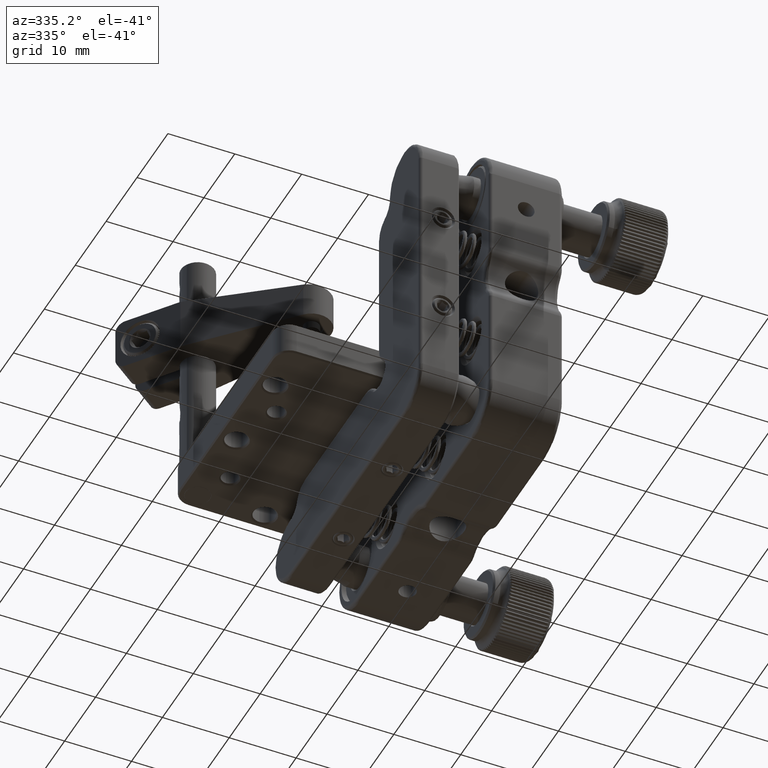
[diagram: clean part render]
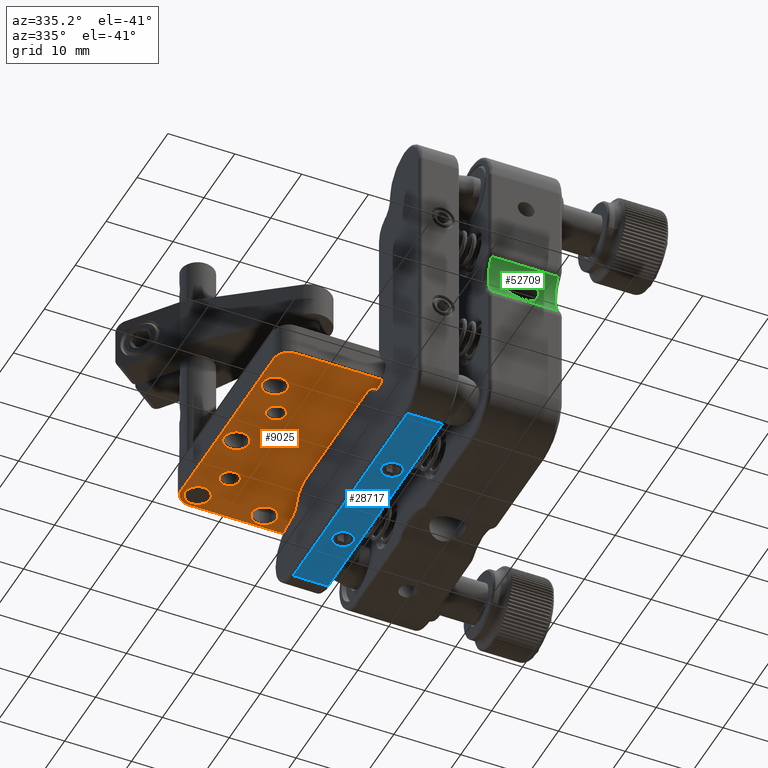
[diagram: same view with three faces highlighted in distinct colors, each labeled with its STEP entity id]
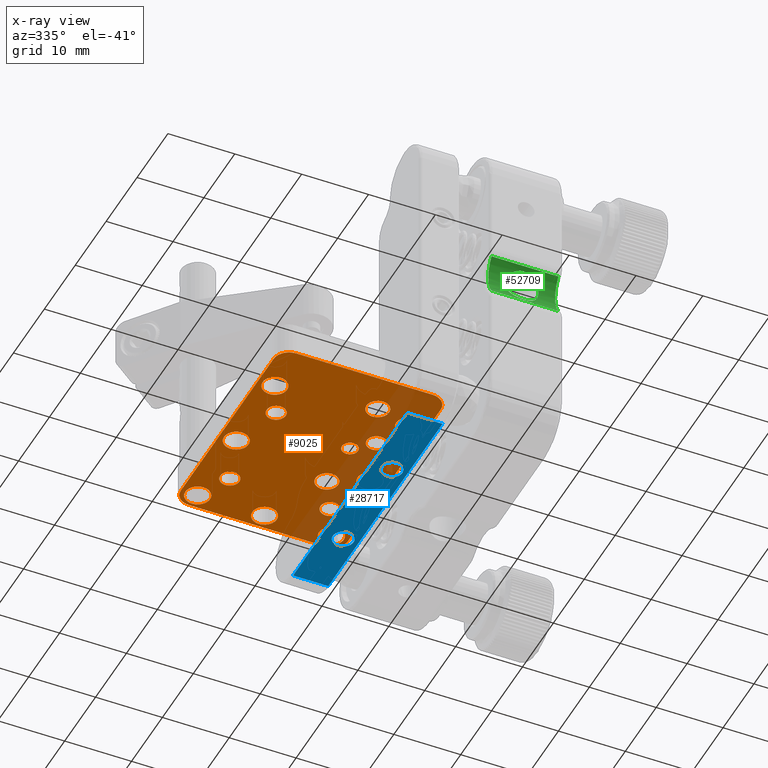
[diagram: x-ray of the same camera — body ghosted, the three highlighted faces saturated]
A machine part, auxiliary view with three faces highlighted in distinct colors.
The next image is the same camera in x-ray (body ghosted, the three faces saturated) — at least one of them is partly hidden behind the body in this view.
Their STEP definitions:

[orange] entity #9025 — the highlighted planar face has unit normal (0, 0, 1).
#143 = ORIENTED_EDGE ( 'NONE', *, *, #20534, .F. ) ;
#239 = CARTESIAN_POINT ( 'NONE',  ( -29.69999999999999929, 8.000000000000000000, -10.00000000000000000 ) ) ;
#344 = VERTEX_POINT ( 'NONE', #48723 ) ;
#524 = VERTEX_POINT ( 'NONE', #55263 ) ;
#574 = EDGE_LOOP ( 'NONE', ( #29004, #25036 ) ) ;
#736 = CARTESIAN_POINT ( 'NONE',  ( -27.20000000070828960, 21.14999999899999850, -10.00000000100000008 ) ) ;
#790 = CARTESIAN_POINT ( 'NONE',  ( -30.89999999848224022, 24.85000000000000497, -10.00000000000000000 ) ) ;
#1162 = CIRCLE ( 'NONE', #33505, 1.449999997166660393 ) ;
#1765 = CARTESIAN_POINT ( 'NONE',  ( -12.50000000002035350, -5.199999999999998401, -10.00000000000000000 ) ) ;
#1784 = VERTEX_POINT ( 'NONE', #33785 ) ;
#1970 =( BOUNDED_CURVE ( )  B_SPLINE_CURVE ( 3, ( #47726, #53080, #6948, #20634 ),
 .UNSPECIFIED., .F., .T. ) 
 B_SPLINE_CURVE_WITH_KNOTS ( ( 4, 4 ),
 ( 1.299397530674239163E-13, 0.003750978498008947747 ),
 .UNSPECIFIED. ) 
 CURVE ( )  GEOMETRIC_REPRESENTATION_ITEM ( )  RATIONAL_B_SPLINE_CURVE ( ( 1.000000000000000000, 0.3333333334700690487, 0.3333333334700690487, 1.000000000000000000 ) ) 
 REPRESENTATION_ITEM ( '' )  );
#2030 = CARTESIAN_POINT ( 'NONE',  ( -9.700000000555146329, 16.55000000141666661, -9.999999998583330552 ) ) ;
#2486 =( BOUNDED_CURVE ( )  B_SPLINE_CURVE ( 3, ( #24233, #52727, #42414, #30079 ),
 .UNSPECIFIED., .F., .T. ) 
 B_SPLINE_CURVE_WITH_KNOTS ( ( 4, 4 ),
 ( 2.769295101801211656E-13, 0.004532432351619745774 ),
 .UNSPECIFIED. ) 
 CURVE ( )  GEOMETRIC_REPRESENTATION_ITEM ( )  RATIONAL_B_SPLINE_CURVE ( ( 1.000000000000000000, 0.3333333334700690487, 0.3333333334700690487, 1.000000000000000000 ) ) 
 REPRESENTATION_ITEM ( '' )  );
#2755 = CARTESIAN_POINT ( 'NONE',  ( -10.89999999924111762, 21.15000000151776405, -10.00000000000000000 ) ) ;
#3105 = EDGE_CURVE ( 'NONE', #5483, #28156, #22715, .T. ) ;
#3207 = AXIS2_PLACEMENT_3D ( 'NONE', #57515, #25360, #43516 ) ;
#3693 = CARTESIAN_POINT ( 'NONE',  ( -12.50000000002035350, 11.30000000000000071, -10.00000000000000000 ) ) ;
#4019 = FACE_BOUND ( 'NONE', #15308, .T. ) ;
#4020 = EDGE_CURVE ( 'NONE', #14079, #12148, #57036, .T. ) ;
#4216 = CARTESIAN_POINT ( 'NONE',  ( -12.50000000002035350, 11.30000000000000071, -10.00000000000000000 ) ) ;
#4271 = AXIS2_PLACEMENT_3D ( 'NONE', #39753, #8174, #57928 ) ;
#4318 = FACE_BOUND ( 'NONE', #6830, .T. ) ;
#4434 = CARTESIAN_POINT ( 'NONE',  ( -12.49999999999999645, -3.499999999999999556, -10.00000000000000000 ) ) ;
#4612 = EDGE_CURVE ( 'NONE', #25641, #524, #33289, .T. ) ;
#4720 = VERTEX_POINT ( 'NONE', #18344 ) ;
#4871 = VERTEX_POINT ( 'NONE', #7873 ) ;
#4969 = CARTESIAN_POINT ( 'NONE',  ( -12.50000000058112448, -1.799999999999999600, -10.00000000000000000 ) ) ;
#5388 = EDGE_CURVE ( 'NONE', #44323, #4871, #55076, .T. ) ;
#5483 = VERTEX_POINT ( 'NONE', #58731 ) ;
#5550 = AXIS2_PLACEMENT_3D ( 'NONE', #26531, #36646, #31581 ) ;
#5856 = CARTESIAN_POINT ( 'NONE',  ( -27.20000000070828960, 21.14999999899999850, -10.00000000100000008 ) ) ;
#6305 = ORIENTED_EDGE ( 'NONE', *, *, #21647, .F. ) ;
#6328 =( BOUNDED_CURVE ( )  B_SPLINE_CURVE ( 3, ( #41553, #37063, #17806, #14738 ),
 .UNSPECIFIED., .F., .F. ) 
 B_SPLINE_CURVE_WITH_KNOTS ( ( 4, 4 ),
 ( 5.511412298146780091E-15, 0.004532432351703708992 ),
 .UNSPECIFIED. ) 
 CURVE ( )  GEOMETRIC_REPRESENTATION_ITEM ( )  RATIONAL_B_SPLINE_CURVE ( ( 1.000000000000000000, 0.3333333334700690487, 0.3333333334700690487, 1.000000000000000000 ) ) 
 REPRESENTATION_ITEM ( '' )  );
#6411 = CARTESIAN_POINT ( 'NONE',  ( -27.59999999940519189, 16.55000000118959846, -10.00000000000000000 ) ) ;
#6778 = CARTESIAN_POINT ( 'NONE',  ( -17.19999999999999929, -9.299999999999998934, -10.00000000000000000 ) ) ;
#6830 = EDGE_LOOP ( 'NONE', ( #24218, #28148 ) ) ;
#6930 = CARTESIAN_POINT ( 'NONE',  ( -17.20000000005537188, 24.85000000100000150, -10.00000000100000008 ) ) ;
#6948 = CARTESIAN_POINT ( 'NONE',  ( -14.89999999901550254, 6.700000000000000178, -10.00000000000000000 ) ) ;
#7150 = DIRECTION ( 'NONE',  ( 1.000000000000000000, 0.000000000000000000, 0.000000000000000000 ) ) ;
#7155 = CIRCLE ( 'NONE', #4271, 1.450000000399999323 ) ;
#7793 = DIRECTION ( 'NONE',  ( 1.000000000000000000, 0.000000000000000000, 0.000000000000000000 ) ) ;
#7873 = CARTESIAN_POINT ( 'NONE',  ( -29.69999999999999574, 23.00000000044239457, -10.00000000000000000 ) ) ;
#7929 = FACE_BOUND ( 'NONE', #52271, .T. ) ;
#7945 = EDGE_LOOP ( 'NONE', ( #54881, #56384 ) ) ;
#8078 = DIRECTION ( 'NONE',  ( -0.000000000000000000, -0.000000000000000000, -1.000000000000000000 ) ) ;
#8163 = CARTESIAN_POINT ( 'NONE',  ( -27.20000000005537188, 24.85000000100000150, -10.00000000100000008 ) ) ;
#8174 = DIRECTION ( 'NONE',  ( 3.701697761052392156E-17, 3.701697760293164687E-17, -1.000000000000000000 ) ) ;
#8204 = VERTEX_POINT ( 'NONE', #51879 ) ;
#8238 = CARTESIAN_POINT ( 'NONE',  ( -10.89999999924111762, -3.849999998482234176, -10.00000000000000000 ) ) ;
#8511 = DIRECTION ( 'NONE',  ( 0.000000000000000000, 0.000000000000000000, 1.000000000000000000 ) ) ;
#8603 = CARTESIAN_POINT ( 'NONE',  ( -7.000000000000002665, 25.29999999999999716, -10.00000000000000000 ) ) ;
#8698 = CARTESIAN_POINT ( 'NONE',  ( -15.89999999930264174, 14.69999999860529627, -10.00000000000000000 ) ) ;
#8772 = DIRECTION ( 'NONE',  ( 0.000000000000000000, -1.000000000000000000, 0.000000000000000000 ) ) ;
#8818 = CARTESIAN_POINT ( 'NONE',  ( -12.50000000002035350, -5.199999999999998401, -10.00000000000000000 ) ) ;
#9025 = ADVANCED_FACE ( 'NONE', ( #47856, #40386, #13271, #4318, #58262, #4019, #17445, #21330, #13562, #21618, #39512, #7929, #57687, #26369, #17730 ), #22502, .F. ) ;
#9648 = ORIENTED_EDGE ( 'NONE', *, *, #49765, .F. ) ;
#9860 = VERTEX_POINT ( 'NONE', #13854 ) ;
#10222 = VERTEX_POINT ( 'NONE', #23250 ) ;
#11216 =( BOUNDED_CURVE ( )  B_SPLINE_CURVE ( 3, ( #22512, #53506, #45139, #54688 ),
 .UNSPECIFIED., .F., .T. ) 
 B_SPLINE_CURVE_WITH_KNOTS ( ( 4, 4 ),
 ( 2.205571338659796204E-13, 0.005782758517643168603 ),
 .UNSPECIFIED. ) 
 CURVE ( )  GEOMETRIC_REPRESENTATION_ITEM ( )  RATIONAL_B_SPLINE_CURVE ( ( 1.000000000000000000, 0.3333333334700690487, 0.3333333334700690487, 1.000000000000000000 ) ) 
 REPRESENTATION_ITEM ( '' )  );
#11317 = EDGE_CURVE ( 'NONE', #47930, #19111, #29111, .T. ) ;
#11468 = CIRCLE ( 'NONE', #28524, 1.850000002000001809 ) ;
#11498 = CARTESIAN_POINT ( 'NONE',  ( -7.200000000000000178, -1.999999999999993117, -9.999999999700001752 ) ) ;
#11598 = CARTESIAN_POINT ( 'NONE',  ( -24.70000000055514633, 16.55000000141667371, -9.999999998583328775 ) ) ;
#11904 = DIRECTION ( 'NONE',  ( -0.000000000000000000, 1.000000000000000000, -0.000000000000000000 ) ) ;
#11939 = EDGE_CURVE ( 'NONE', #35820, #344, #6328, .T. ) ;
#12064 = DIRECTION ( 'NONE',  ( 2.804316485645718615E-17, 2.804316485070571838E-17, -1.000000000000000000 ) ) ;
#12148 = VERTEX_POINT ( 'NONE', #35521 ) ;
#12738 = EDGE_CURVE ( 'NONE', #21318, #55273, #58344, .T. ) ;
#13271 = FACE_BOUND ( 'NONE', #57033, .T. ) ;
#13338 = CARTESIAN_POINT ( 'NONE',  ( -4.699999999999999289, 23.00000000023587177, -10.00000000000000000 ) ) ;
#13562 = FACE_BOUND ( 'NONE', #50466, .T. ) ;
#13605 = CARTESIAN_POINT ( 'NONE',  ( -4.699999999999999289, -7.000000000000004441, -10.00000000000000000 ) ) ;
#13731 = DIRECTION ( 'NONE',  ( 2.804316485645746964E-17, 2.804316485070573687E-17, -1.000000000000000000 ) ) ;
#13854 = CARTESIAN_POINT ( 'NONE',  ( -7.200000000055370108, 12.34999999898333378, -9.999999998983334137 ) ) ;
#13991 = DIRECTION ( 'NONE',  ( 2.804316485645719231E-17, 2.804316485070573687E-17, -1.000000000000000000 ) ) ;
#14079 = VERTEX_POINT ( 'NONE', #50581 ) ;
#14467 = ORIENTED_EDGE ( 'NONE', *, *, #49206, .F. ) ;
#14738 = CARTESIAN_POINT ( 'NONE',  ( -24.70000000004339924, 4.450000000200000194, -10.00000000020000002 ) ) ;
#15051 = CARTESIAN_POINT ( 'NONE',  ( -27.59999999881039301, 19.44999999999999929, -10.00000000000000000 ) ) ;
#15155 = AXIS2_PLACEMENT_3D ( 'NONE', #49768, #53662, #36636 ) ;
#15182 = AXIS2_PLACEMENT_3D ( 'NONE', #19663, #24735, #7150 ) ;
#15216 = CARTESIAN_POINT ( 'NONE',  ( -29.69999999999999929, -6.999999999557608099, -10.00000000000000000 ) ) ;
#15308 = EDGE_LOOP ( 'NONE', ( #35015, #51749 ) ) ;
#15444 = EDGE_LOOP ( 'NONE', ( #51629, #9648 ) ) ;
#16473 = CARTESIAN_POINT ( 'NONE',  ( -7.200000000055370108, 24.85000000100000150, -10.00000000100000008 ) ) ;
#16755 = VECTOR ( 'NONE', #58090, 1000.000000000000000 ) ;
#16940 = EDGE_CURVE ( 'NONE', #524, #25641, #46185, .T. ) ;
#17175 = EDGE_CURVE ( 'NONE', #17893, #4720, #22407, .T. ) ;
#17186 = CARTESIAN_POINT ( 'NONE',  ( -9.700000000555146329, 1.549999999799998696, -10.00000000020000002 ) ) ;
#17445 = FACE_BOUND ( 'NONE', #47589, .T. ) ;
#17499 = ORIENTED_EDGE ( 'NONE', *, *, #20082, .F. ) ;
#17502 = CIRCLE ( 'NONE', #3207, 2.300000000000003375 ) ;
#17638 = EDGE_CURVE ( 'NONE', #21028, #31569, #29132, .T. ) ;
#17730 = FACE_BOUND ( 'NONE', #29349, .T. ) ;
#17761 = EDGE_CURVE ( 'NONE', #23485, #44323, #25911, .T. ) ;
#17806 = CARTESIAN_POINT ( 'NONE',  ( -27.59999999881040367, 4.450000000000000178, -10.00000000000000178 ) ) ;
#17893 = VERTEX_POINT ( 'NONE', #18140 ) ;
#17905 = DIRECTION ( 'NONE',  ( 1.000000000000000000, 0.000000000000000000, 0.000000000000000000 ) ) ;
#17939 = CARTESIAN_POINT ( 'NONE',  ( -27.20000000070829316, -3.849999999850004517, -9.999999999850002652 ) ) ;
#18138 = DIRECTION ( 'NONE',  ( 0.000000000000000000, -1.000000000000000000, 0.000000000000000000 ) ) ;
#18140 = CARTESIAN_POINT ( 'NONE',  ( -27.20000000005537188, 12.34999999898333378, -9.999999998983334137 ) ) ;
#18149 = CARTESIAN_POINT ( 'NONE',  ( -24.70000000055514633, 1.549999999799999584, -10.00000000020000002 ) ) ;
#18344 = CARTESIAN_POINT ( 'NONE',  ( -27.20000000070828960, 8.650000001016667994, -9.999999998983334137 ) ) ;
#18520 = CIRCLE ( 'NONE', #48030, 2.299999999999989608 ) ;
#18669 =( BOUNDED_CURVE ( )  B_SPLINE_CURVE ( 3, ( #43580, #2755, #39111, #16473 ),
 .UNSPECIFIED., .F., .F. ) 
 B_SPLINE_CURVE_WITH_KNOTS ( ( 4, 4 ),
 ( 1.180118893524667894E-13, 0.005782758517747905135 ),
 .UNSPECIFIED. ) 
 CURVE ( )  GEOMETRIC_REPRESENTATION_ITEM ( )  RATIONAL_B_SPLINE_CURVE ( ( 1.000000000000000000, 0.3333333334700690487, 0.3333333334700690487, 1.000000000000000000 ) ) 
 REPRESENTATION_ITEM ( '' )  );
#18686 = VECTOR ( 'NONE', #35028, 1000.000000000000000 ) ;
#19111 = VERTEX_POINT ( 'NONE', #8163 ) ;
#19339 = CARTESIAN_POINT ( 'NONE',  ( -27.20000000000000284, -2.000000000000003553, -9.999999999700001752 ) ) ;
#19383 = ORIENTED_EDGE ( 'NONE', *, *, #37326, .F. ) ;
#19663 = CARTESIAN_POINT ( 'NONE',  ( -12.50000000000000000, 5.500000000000003553, -10.00000000193333349 ) ) ;
#19751 = DIRECTION ( 'NONE',  ( 1.000000000000000000, 0.000000000000000000, 0.000000000000000000 ) ) ;
#20036 = CARTESIAN_POINT ( 'NONE',  ( -10.89999999924111407, 8.650000001517765824, -10.00000000000000000 ) ) ;
#20082 = EDGE_CURVE ( 'NONE', #4871, #27225, #50295, .T. ) ;
#20435 =( BOUNDED_CURVE ( )  B_SPLINE_CURVE ( 3, ( #17186, #22237, #27290, #41011 ),
 .UNSPECIFIED., .F., .T. ) 
 B_SPLINE_CURVE_WITH_KNOTS ( ( 4, 4 ),
 ( 5.513158802045404362E-15, 0.004532432351703706390 ),
 .UNSPECIFIED. ) 
 CURVE ( )  GEOMETRIC_REPRESENTATION_ITEM ( )  RATIONAL_B_SPLINE_CURVE ( ( 1.000000000000000000, 0.3333333334700690487, 0.3333333334700690487, 1.000000000000000000 ) ) 
 REPRESENTATION_ITEM ( '' )  );
#20517 = AXIS2_PLACEMENT_3D ( 'NONE', #11498, #38877, #20995 ) ;
#20534 = EDGE_CURVE ( 'NONE', #8204, #36332, #20435, .T. ) ;
#20634 = CARTESIAN_POINT ( 'NONE',  ( -12.50000000003591438, 6.700000000966666924, -10.00000000096666852 ) ) ;
#20824 = ORIENTED_EDGE ( 'NONE', *, *, #21795, .F. ) ;
#20995 = DIRECTION ( 'NONE',  ( 1.000000000000000000, 0.000000000000000000, 0.000000000000000000 ) ) ;
#21028 = VERTEX_POINT ( 'NONE', #29426 ) ;
#21055 = CARTESIAN_POINT ( 'NONE',  ( -7.200000000708288717, -3.849999999850004517, -9.999999999850002652 ) ) ;
#21314 = ORIENTED_EDGE ( 'NONE', *, *, #16940, .F. ) ;
#21318 = VERTEX_POINT ( 'NONE', #13605 ) ;
#21330 = FACE_BOUND ( 'NONE', #23764, .T. ) ;
#21489 = ORIENTED_EDGE ( 'NONE', *, *, #17638, .F. ) ;
#21618 = FACE_BOUND ( 'NONE', #41336, .T. ) ;
#21647 = EDGE_CURVE ( 'NONE', #58689, #28641, #1162, .T. ) ;
#21795 = EDGE_CURVE ( 'NONE', #27225, #23198, #40163, .T. ) ;
#21998 = EDGE_CURVE ( 'NONE', #36332, #8204, #37987, .T. ) ;
#22204 = DIRECTION ( 'NONE',  ( 0.000000000000000000, -1.000000000000000000, 0.000000000000000000 ) ) ;
#22237 = CARTESIAN_POINT ( 'NONE',  ( -12.59999999940519899, 1.550000001189600463, -10.00000000000000178 ) ) ;
#22322 = DIRECTION ( 'NONE',  ( -0.000000000000000000, -0.000000000000000000, -1.000000000000000000 ) ) ;
#22407 = CIRCLE ( 'NONE', #41468, 1.849999997966669030 ) ;
#22418 = EDGE_CURVE ( 'NONE', #31569, #21028, #36405, .T. ) ;
#22469 = CARTESIAN_POINT ( 'NONE',  ( -27.39999999999998792, -7.000000000000000888, -10.00000000000000000 ) ) ;
#22502 = PLANE ( 'NONE',  #45704 ) ;
#22512 = CARTESIAN_POINT ( 'NONE',  ( -27.20000000070828960, 8.650000001016667994, -9.999999998983334137 ) ) ;
#22650 = CARTESIAN_POINT ( 'NONE',  ( -27.19999999999998153, 23.00000000000000000, -10.00000000200000194 ) ) ;
#22715 = CIRCLE ( 'NONE', #39844, 1.700000000000000178 ) ;
#22881 = EDGE_CURVE ( 'NONE', #48874, #28732, #57093, .T. ) ;
#23042 = DIRECTION ( 'NONE',  ( 2.804316485645756825E-17, 2.804316485070578618E-17, -1.000000000000000000 ) ) ;
#23096 = ORIENTED_EDGE ( 'NONE', *, *, #5388, .F. ) ;
#23109 = CARTESIAN_POINT ( 'NONE',  ( -15.89999999930264707, -1.800000001394702842, -10.00000000000000000 ) ) ;
#23198 = VERTEX_POINT ( 'NONE', #55728 ) ;
#23250 = CARTESIAN_POINT ( 'NONE',  ( -27.20000000070829316, -3.849999999850004517, -9.999999999850002652 ) ) ;
#23485 = VERTEX_POINT ( 'NONE', #8603 ) ;
#23764 = EDGE_LOOP ( 'NONE', ( #32811, #54617 ) ) ;
#24218 = ORIENTED_EDGE ( 'NONE', *, *, #33467, .F. ) ;
#24233 = CARTESIAN_POINT ( 'NONE',  ( -9.700000000555146329, 16.55000000141666661, -9.999999998583330552 ) ) ;
#24735 = DIRECTION ( 'NONE',  ( 4.627122201315476328E-17, 4.627122200366438449E-17, -1.000000000000000000 ) ) ;
#25036 = ORIENTED_EDGE ( 'NONE', *, *, #25181, .F. ) ;
#25181 = EDGE_CURVE ( 'NONE', #344, #35820, #7155, .T. ) ;
#25207 = CARTESIAN_POINT ( 'NONE',  ( -9.699999999999997513, 18.00000000000000355, -9.999999997166661103 ) ) ;
#25360 = DIRECTION ( 'NONE',  ( 0.000000000000000000, 0.000000000000000000, 1.000000000000000000 ) ) ;
#25390 = CARTESIAN_POINT ( 'NONE',  ( -10.89999999848223133, 12.34999999999999964, -10.00000000000000000 ) ) ;
#25490 = DIRECTION ( 'NONE',  ( 3.701697761052383528E-17, 3.701697760293160373E-17, -1.000000000000000000 ) ) ;
#25641 = VERTEX_POINT ( 'NONE', #45616 ) ;
#25671 = CARTESIAN_POINT ( 'NONE',  ( -7.200000000708288717, 8.650000001016667994, -9.999999998983334137 ) ) ;
#25911 = LINE ( 'NONE', #26780, #16755 ) ;
#26284 = CARTESIAN_POINT ( 'NONE',  ( -30.89999999848223666, -0.1499999999999973854, -10.00000000000000000 ) ) ;
#26369 = FACE_BOUND ( 'NONE', #574, .T. ) ;
#26531 = CARTESIAN_POINT ( 'NONE',  ( -27.40000000000000213, 23.00000000000000000, -10.00000000000000000 ) ) ;
#26780 = CARTESIAN_POINT ( 'NONE',  ( -17.19999999999999929, 25.30000000000000071, -10.00000000000000000 ) ) ;
#27225 = VERTEX_POINT ( 'NONE', #15216 ) ;
#27290 = CARTESIAN_POINT ( 'NONE',  ( -12.59999999881039656, 4.449999999999998401, -10.00000000000000178 ) ) ;
#27555 =( BOUNDED_CURVE ( )  B_SPLINE_CURVE ( 3, ( #4216, #49498, #8698, #49803 ),
 .UNSPECIFIED., .F., .F. ) 
 B_SPLINE_CURVE_WITH_KNOTS ( ( 4, 4 ),
 ( 2.006415758497183476E-14, 0.005313886205509007685 ),
 .UNSPECIFIED. ) 
 CURVE ( )  GEOMETRIC_REPRESENTATION_ITEM ( )  RATIONAL_B_SPLINE_CURVE ( ( 1.000000000000000000, 0.3333333334700690487, 0.3333333334700690487, 1.000000000000000000 ) ) 
 REPRESENTATION_ITEM ( '' )  );
#27960 = AXIS2_PLACEMENT_3D ( 'NONE', #19339, #45851, #36897 ) ;
#28148 = ORIENTED_EDGE ( 'NONE', *, *, #4020, .F. ) ;
#28156 = VERTEX_POINT ( 'NONE', #3693 ) ;
#28209 = CARTESIAN_POINT ( 'NONE',  ( -9.700000000043401016, 19.44999999858332984, -9.999999998583328775 ) ) ;
#28445 = DIRECTION ( 'NONE',  ( 0.000000000000000000, 0.000000000000000000, 1.000000000000000000 ) ) ;
#28453 = EDGE_CURVE ( 'NONE', #28732, #48874, #18669, .T. ) ;
#28524 = AXIS2_PLACEMENT_3D ( 'NONE', #22650, #13991, #32153 ) ;
#28641 = VERTEX_POINT ( 'NONE', #2030 ) ;
#28732 = VERTEX_POINT ( 'NONE', #48771 ) ;
#28983 = CIRCLE ( 'NONE', #41362, 1.850000002000001809 ) ;
#29004 = ORIENTED_EDGE ( 'NONE', *, *, #11939, .F. ) ;
#29111 =( BOUNDED_CURVE ( )  B_SPLINE_CURVE ( 3, ( #5856, #56220, #790, #41914 ),
 .UNSPECIFIED., .F., .T. ) 
 B_SPLINE_CURVE_WITH_KNOTS ( ( 4, 4 ),
 ( 1.180127444014865594E-13, 0.005782758517747907737 ),
 .UNSPECIFIED. ) 
 CURVE ( )  GEOMETRIC_REPRESENTATION_ITEM ( )  RATIONAL_B_SPLINE_CURVE ( ( 1.000000000000000000, 0.3333333334700690487, 0.3333333334700690487, 1.000000000000000000 ) ) 
 REPRESENTATION_ITEM ( '' )  );
#29132 = CIRCLE ( 'NONE', #44344, 1.449999997166662169 ) ;
#29349 = EDGE_LOOP ( 'NONE', ( #55929, #21489 ) ) ;
#29363 = CARTESIAN_POINT ( 'NONE',  ( -27.40000000047173856, 25.29999999999999716, -10.00000000000000000 ) ) ;
#29426 = CARTESIAN_POINT ( 'NONE',  ( -24.70000000004339924, 19.44999999858332984, -9.999999998583328775 ) ) ;
#29482 = AXIS2_PLACEMENT_3D ( 'NONE', #47719, #34323, #7793 ) ;
#29627 = DIRECTION ( 'NONE',  ( 1.000000000000000000, 0.000000000000000000, 0.000000000000000000 ) ) ;
#29751 = AXIS2_PLACEMENT_3D ( 'NONE', #31001, #13731, #17905 ) ;
#30079 = CARTESIAN_POINT ( 'NONE',  ( -9.700000000043401016, 19.44999999858332984, -9.999999998583328775 ) ) ;
#30583 = ORIENTED_EDGE ( 'NONE', *, *, #4612, .F. ) ;
#31001 = CARTESIAN_POINT ( 'NONE',  ( -7.199999999999998401, 10.50000000000000178, -9.999999997966668275 ) ) ;
#31344 =( BOUNDED_CURVE ( )  B_SPLINE_CURVE ( 3, ( #25671, #20036, #25390, #34315 ),
 .UNSPECIFIED., .F., .F. ) 
 B_SPLINE_CURVE_WITH_KNOTS ( ( 4, 4 ),
 ( 2.205571338659796456E-13, 0.005782758517643163398 ),
 .UNSPECIFIED. ) 
 CURVE ( )  GEOMETRIC_REPRESENTATION_ITEM ( )  RATIONAL_B_SPLINE_CURVE ( ( 1.000000000000000000, 0.3333333334700690487, 0.3333333334700690487, 1.000000000000000000 ) ) 
 REPRESENTATION_ITEM ( '' )  );
#31569 = VERTEX_POINT ( 'NONE', #11598 ) ;
#31581 = DIRECTION ( 'NONE',  ( 0.000000000000000000, -1.000000000000000000, 0.000000000000000000 ) ) ;
#31660 = CARTESIAN_POINT ( 'NONE',  ( -7.200000000055370108, 24.85000000100000150, -10.00000000100000008 ) ) ;
#32153 = DIRECTION ( 'NONE',  ( 1.000000000000000000, 0.000000000000000000, 0.000000000000000000 ) ) ;
#32542 = AXIS2_PLACEMENT_3D ( 'NONE', #22469, #45395, #8772 ) ;
#32721 = ORIENTED_EDGE ( 'NONE', *, *, #54752, .F. ) ;
#32811 = ORIENTED_EDGE ( 'NONE', *, *, #28453, .F. ) ;
#32972 = CARTESIAN_POINT ( 'NONE',  ( -27.20000000005537188, -0.1500000001499988966, -9.999999999850000876 ) ) ;
#33056 = VERTEX_POINT ( 'NONE', #1765 ) ;
#33289 =( BOUNDED_CURVE ( )  B_SPLINE_CURVE ( 3, ( #21055, #8238, #39223, #57111 ),
 .UNSPECIFIED., .F., .T. ) 
 B_SPLINE_CURVE_WITH_KNOTS ( ( 4, 4 ),
 ( 7.505556960062448775E-14, 0.005782758517688182942 ),
 .UNSPECIFIED. ) 
 CURVE ( )  GEOMETRIC_REPRESENTATION_ITEM ( )  RATIONAL_B_SPLINE_CURVE ( ( 1.000000000000000000, 0.3333333334700690487, 0.3333333334700690487, 1.000000000000000000 ) ) 
 REPRESENTATION_ITEM ( '' )  );
#33467 = EDGE_CURVE ( 'NONE', #12148, #14079, #1970, .T. ) ;
#33505 = AXIS2_PLACEMENT_3D ( 'NONE', #25207, #25490, #48404 ) ;
#33630 = EDGE_CURVE ( 'NONE', #9860, #1784, #42135, .T. ) ;
#33785 = CARTESIAN_POINT ( 'NONE',  ( -7.200000000708288717, 8.650000001016667994, -9.999999998983334137 ) ) ;
#33928 = CARTESIAN_POINT ( 'NONE',  ( -17.20000000070828960, 21.14999999899999850, -10.00000000100000008 ) ) ;
#34315 = CARTESIAN_POINT ( 'NONE',  ( -7.200000000055370108, 12.34999999898333378, -9.999999998983334137 ) ) ;
#34323 = DIRECTION ( 'NONE',  ( 2.804316485645719231E-17, 2.804316485070568757E-17, -1.000000000000000000 ) ) ;
#34519 = VECTOR ( 'NONE', #11904, 1000.000000000000000 ) ;
#34816 = EDGE_CURVE ( 'NONE', #51934, #33056, #55489, .T. ) ;
#35015 = ORIENTED_EDGE ( 'NONE', *, *, #36748, .F. ) ;
#35028 = DIRECTION ( 'NONE',  ( 1.000000000000000000, 0.000000000000000000, 0.000000000000000000 ) ) ;
#35521 = CARTESIAN_POINT ( 'NONE',  ( -12.50000000045943160, 4.299999999033332188, -10.00000000096666852 ) ) ;
#35594 = CARTESIAN_POINT ( 'NONE',  ( -29.69999999999999929, 25.30000000000000071, -10.00000000000000000 ) ) ;
#35763 = EDGE_CURVE ( 'NONE', #55273, #23485, #17502, .T. ) ;
#35820 = VERTEX_POINT ( 'NONE', #18149 ) ;
#35979 = EDGE_CURVE ( 'NONE', #52126, #10222, #40341, .T. ) ;
#36257 = ORIENTED_EDGE ( 'NONE', *, *, #40847, .F. ) ;
#36292 = EDGE_CURVE ( 'NONE', #4720, #17893, #11216, .T. ) ;
#36332 = VERTEX_POINT ( 'NONE', #42153 ) ;
#36391 = CARTESIAN_POINT ( 'NONE',  ( -30.89999999924111762, -3.849999998482233732, -10.00000000000000000 ) ) ;
#36405 =( BOUNDED_CURVE ( )  B_SPLINE_CURVE ( 3, ( #46919, #6411, #15051, #57045 ),
 .UNSPECIFIED., .F., .T. ) 
 B_SPLINE_CURVE_WITH_KNOTS ( ( 4, 4 ),
 ( 2.769312202802388050E-13, 0.004532432351619739702 ),
 .UNSPECIFIED. ) 
 CURVE ( )  GEOMETRIC_REPRESENTATION_ITEM ( )  RATIONAL_B_SPLINE_CURVE ( ( 1.000000000000000000, 0.3333333334700690487, 0.3333333334700690487, 1.000000000000000000 ) ) 
 REPRESENTATION_ITEM ( '' )  );
#36636 = DIRECTION ( 'NONE',  ( 1.000000000000000000, 0.000000000000000000, 0.000000000000000000 ) ) ;
#36646 = DIRECTION ( 'NONE',  ( 0.000000000000000000, 0.000000000000000000, 1.000000000000000000 ) ) ;
#36702 = EDGE_LOOP ( 'NONE', ( #36257, #6305 ) ) ;
#36748 = EDGE_CURVE ( 'NONE', #1784, #9860, #31344, .T. ) ;
#36769 = VERTEX_POINT ( 'NONE', #6930 ) ;
#36897 = DIRECTION ( 'NONE',  ( 1.000000000000000000, 0.000000000000000000, 0.000000000000000000 ) ) ;
#37063 = CARTESIAN_POINT ( 'NONE',  ( -27.59999999940520254, 1.550000001189599130, -10.00000000000000178 ) ) ;
#37326 = EDGE_CURVE ( 'NONE', #33056, #51934, #39725, .T. ) ;
#37384 = CARTESIAN_POINT ( 'NONE',  ( -6.999999999999999112, -7.000000000000009770, -10.00000000000000000 ) ) ;
#37432 = EDGE_CURVE ( 'NONE', #37971, #21318, #18520, .T. ) ;
#37607 = EDGE_CURVE ( 'NONE', #36769, #48653, #28983, .T. ) ;
#37971 = VERTEX_POINT ( 'NONE', #54258 ) ;
#37987 = CIRCLE ( 'NONE', #15155, 1.450000000400002875 ) ;
#38381 = ORIENTED_EDGE ( 'NONE', *, *, #35979, .F. ) ;
#38877 = DIRECTION ( 'NONE',  ( 2.804316485645749430E-17, 2.804316485070573687E-17, -1.000000000000000000 ) ) ;
#39111 = CARTESIAN_POINT ( 'NONE',  ( -10.89999999848222600, 24.84999999999999432, -10.00000000000000000 ) ) ;
#39223 = CARTESIAN_POINT ( 'NONE',  ( -10.89999999848222956, -0.1500000000000008826, -10.00000000000000000 ) ) ;
#39396 =( BOUNDED_CURVE ( )  B_SPLINE_CURVE ( 3, ( #33928, #55695, #52094, #41986 ),
 .UNSPECIFIED., .F., .F. ) 
 B_SPLINE_CURVE_WITH_KNOTS ( ( 4, 4 ),
 ( 1.180127444014865594E-13, 0.005782758517747901665 ),
 .UNSPECIFIED. ) 
 CURVE ( )  GEOMETRIC_REPRESENTATION_ITEM ( )  RATIONAL_B_SPLINE_CURVE ( ( 1.000000000000000000, 0.3333333334700690487, 0.3333333334700690487, 1.000000000000000000 ) ) 
 REPRESENTATION_ITEM ( '' )  );
#39512 = FACE_BOUND ( 'NONE', #47982, .T. ) ;
#39725 =( BOUNDED_CURVE ( )  B_SPLINE_CURVE ( 3, ( #8818, #40996, #23109, #54404 ),
 .UNSPECIFIED., .F., .T. ) 
 B_SPLINE_CURVE_WITH_KNOTS ( ( 4, 4 ),
 ( 2.006586768358595896E-14, 0.005313886205509004215 ),
 .UNSPECIFIED. ) 
 CURVE ( )  GEOMETRIC_REPRESENTATION_ITEM ( )  RATIONAL_B_SPLINE_CURVE ( ( 1.000000000000000000, 0.3333333334700690487, 0.3333333334700690487, 1.000000000000000000 ) ) 
 REPRESENTATION_ITEM ( '' )  );
#39753 = CARTESIAN_POINT ( 'NONE',  ( -24.69999999999999929, 3.000000000000000888, -10.00000000040000181 ) ) ;
#39756 = EDGE_CURVE ( 'NONE', #23198, #37971, #47863, .T. ) ;
#39844 = AXIS2_PLACEMENT_3D ( 'NONE', #44411, #8078, #40245 ) ;
#40163 = CIRCLE ( 'NONE', #32542, 2.300000000000014033 ) ;
#40245 = DIRECTION ( 'NONE',  ( 0.000000000000000000, -1.000000000000000000, 0.000000000000000000 ) ) ;
#40341 = CIRCLE ( 'NONE', #27960, 1.849999999700008280 ) ;
#40386 = FACE_BOUND ( 'NONE', #15444, .T. ) ;
#40460 = ORIENTED_EDGE ( 'NONE', *, *, #11317, .F. ) ;
#40598 = CARTESIAN_POINT ( 'NONE',  ( -27.20000000005537188, -0.1500000001499988966, -9.999999999850000876 ) ) ;
#40847 = EDGE_CURVE ( 'NONE', #28641, #58689, #2486, .T. ) ;
#40996 = CARTESIAN_POINT ( 'NONE',  ( -15.89999999860529023, -5.199999999999998401, -10.00000000000000000 ) ) ;
#41011 = CARTESIAN_POINT ( 'NONE',  ( -9.700000000043401016, 4.450000000200000194, -10.00000000020000002 ) ) ;
#41336 = EDGE_LOOP ( 'NONE', ( #32721, #38381 ) ) ;
#41362 = AXIS2_PLACEMENT_3D ( 'NONE', #56474, #12064, #29627 ) ;
#41468 = AXIS2_PLACEMENT_3D ( 'NONE', #50743, #23042, #19751 ) ;
#41553 = CARTESIAN_POINT ( 'NONE',  ( -24.70000000055514633, 1.549999999799999584, -10.00000000020000002 ) ) ;
#41721 = ORIENTED_EDGE ( 'NONE', *, *, #36292, .F. ) ;
#41914 = CARTESIAN_POINT ( 'NONE',  ( -27.20000000005537188, 24.85000000100000150, -10.00000000100000008 ) ) ;
#41986 = CARTESIAN_POINT ( 'NONE',  ( -17.20000000005537188, 24.85000000100000150, -10.00000000100000008 ) ) ;
#42135 = CIRCLE ( 'NONE', #29751, 1.849999997966665699 ) ;
#42153 = CARTESIAN_POINT ( 'NONE',  ( -9.700000000043401016, 4.450000000200000194, -10.00000000020000002 ) ) ;
#42414 = CARTESIAN_POINT ( 'NONE',  ( -12.59999999881040189, 19.44999999999999929, -10.00000000000000000 ) ) ;
#42472 = DIRECTION ( 'NONE',  ( 0.000000000000000000, -1.000000000000000000, 0.000000000000000000 ) ) ;
#42802 =( BOUNDED_CURVE ( )  B_SPLINE_CURVE ( 3, ( #17939, #36391, #26284, #40598 ),
 .UNSPECIFIED., .F., .F. ) 
 B_SPLINE_CURVE_WITH_KNOTS ( ( 4, 4 ),
 ( 7.505828037095571098E-14, 0.005782758517688185544 ),
 .UNSPECIFIED. ) 
 CURVE ( )  GEOMETRIC_REPRESENTATION_ITEM ( )  RATIONAL_B_SPLINE_CURVE ( ( 1.000000000000000000, 0.3333333334700690487, 0.3333333334700690487, 1.000000000000000000 ) ) 
 REPRESENTATION_ITEM ( '' )  );
#43230 = DIRECTION ( 'NONE',  ( 1.000000000000000000, 0.000000000000000000, 0.000000000000000000 ) ) ;
#43471 = CARTESIAN_POINT ( 'NONE',  ( -4.699999999999999289, 8.000000000000000000, -10.00000000000000000 ) ) ;
#43516 = DIRECTION ( 'NONE',  ( 0.000000000000000000, -1.000000000000000000, 0.000000000000000000 ) ) ;
#43580 = CARTESIAN_POINT ( 'NONE',  ( -7.200000000708287828, 21.14999999899999850, -10.00000000100000008 ) ) ;
#43740 = ORIENTED_EDGE ( 'NONE', *, *, #34816, .F. ) ;
#43798 = CARTESIAN_POINT ( 'NONE',  ( -24.69999999999999574, 17.99999999999999645, -9.999999997166659327 ) ) ;
#44323 = VERTEX_POINT ( 'NONE', #29363 ) ;
#44344 = AXIS2_PLACEMENT_3D ( 'NONE', #43798, #52731, #43230 ) ;
#44411 = CARTESIAN_POINT ( 'NONE',  ( -12.50000000000000000, 12.99999999999999822, -10.00000000000000000 ) ) ;
#45139 = CARTESIAN_POINT ( 'NONE',  ( -30.89999999848222956, 12.34999999999999964, -10.00000000000000000 ) ) ;
#45395 = DIRECTION ( 'NONE',  ( 0.000000000000000000, 0.000000000000000000, 1.000000000000000000 ) ) ;
#45425 = ORIENTED_EDGE ( 'NONE', *, *, #21998, .F. ) ;
#45616 = CARTESIAN_POINT ( 'NONE',  ( -7.200000000708288717, -3.849999999850004517, -9.999999999850002652 ) ) ;
#45704 = AXIS2_PLACEMENT_3D ( 'NONE', #35594, #8511, #22204 ) ;
#45827 = DIRECTION ( 'NONE',  ( 0.000000000000000000, -1.000000000000000000, 0.000000000000000000 ) ) ;
#45851 = DIRECTION ( 'NONE',  ( 2.804316485645759290E-17, 2.804316485070583548E-17, -1.000000000000000000 ) ) ;
#46185 = CIRCLE ( 'NONE', #20517, 1.849999999699996067 ) ;
#46919 = CARTESIAN_POINT ( 'NONE',  ( -24.70000000055514633, 16.55000000141667371, -9.999999998583328775 ) ) ;
#47589 = EDGE_LOOP ( 'NONE', ( #41721, #51496 ) ) ;
#47654 = ORIENTED_EDGE ( 'NONE', *, *, #39756, .F. ) ;
#47719 = CARTESIAN_POINT ( 'NONE',  ( -7.199999999999982414, 23.00000000000000711, -10.00000000200000194 ) ) ;
#47726 = CARTESIAN_POINT ( 'NONE',  ( -12.50000000045943160, 4.299999999033332188, -10.00000000096666852 ) ) ;
#47856 = FACE_OUTER_BOUND ( 'NONE', #54199, .T. ) ;
#47863 = LINE ( 'NONE', #6778, #18686 ) ;
#47930 = VERTEX_POINT ( 'NONE', #736 ) ;
#47982 = EDGE_LOOP ( 'NONE', ( #40460, #14467 ) ) ;
#48030 = AXIS2_PLACEMENT_3D ( 'NONE', #37384, #28445, #42472 ) ;
#48404 = DIRECTION ( 'NONE',  ( 1.000000000000000000, 0.000000000000000000, 0.000000000000000000 ) ) ;
#48653 = VERTEX_POINT ( 'NONE', #57052 ) ;
#48723 = CARTESIAN_POINT ( 'NONE',  ( -24.70000000004339924, 4.450000000200000194, -10.00000000020000002 ) ) ;
#48771 = CARTESIAN_POINT ( 'NONE',  ( -7.200000000708287828, 21.14999999899999850, -10.00000000100000008 ) ) ;
#48786 = VECTOR ( 'NONE', #45827, 1000.000000000000000 ) ;
#48874 = VERTEX_POINT ( 'NONE', #31660 ) ;
#49206 = EDGE_CURVE ( 'NONE', #19111, #47930, #11468, .T. ) ;
#49498 = CARTESIAN_POINT ( 'NONE',  ( -15.89999999860529556, 11.30000000000000249, -10.00000000000000000 ) ) ;
#49765 = EDGE_CURVE ( 'NONE', #28156, #5483, #27555, .T. ) ;
#49768 = CARTESIAN_POINT ( 'NONE',  ( -9.700000000000001066, 2.999999999999997335, -10.00000000040000181 ) ) ;
#49803 = CARTESIAN_POINT ( 'NONE',  ( -12.50000000058112448, 14.69999999999999751, -10.00000000000000000 ) ) ;
#50295 = LINE ( 'NONE', #239, #48786 ) ;
#50466 = EDGE_LOOP ( 'NONE', ( #30583, #21314 ) ) ;
#50581 = CARTESIAN_POINT ( 'NONE',  ( -12.50000000003591438, 6.700000000966666924, -10.00000000096666852 ) ) ;
#50743 = CARTESIAN_POINT ( 'NONE',  ( -27.19999999999999929, 10.49999999999999822, -9.999999997966668275 ) ) ;
#51438 = ORIENTED_EDGE ( 'NONE', *, *, #17761, .F. ) ;
#51496 = ORIENTED_EDGE ( 'NONE', *, *, #17175, .F. ) ;
#51629 = ORIENTED_EDGE ( 'NONE', *, *, #3105, .F. ) ;
#51667 = EDGE_CURVE ( 'NONE', #48653, #36769, #39396, .T. ) ;
#51749 = ORIENTED_EDGE ( 'NONE', *, *, #33630, .F. ) ;
#51879 = CARTESIAN_POINT ( 'NONE',  ( -9.700000000555146329, 1.549999999799998696, -10.00000000020000002 ) ) ;
#51934 = VERTEX_POINT ( 'NONE', #4969 ) ;
#51963 = ORIENTED_EDGE ( 'NONE', *, *, #12738, .F. ) ;
#52094 = CARTESIAN_POINT ( 'NONE',  ( -20.89999999848223311, 24.85000000000000142, -10.00000000000000000 ) ) ;
#52126 = VERTEX_POINT ( 'NONE', #32972 ) ;
#52271 = EDGE_LOOP ( 'NONE', ( #143, #45425 ) ) ;
#52727 = CARTESIAN_POINT ( 'NONE',  ( -12.59999999940520077, 16.55000000118959491, -10.00000000000000000 ) ) ;
#52731 = DIRECTION ( 'NONE',  ( 3.701697761052387842E-17, 3.701697760293177630E-17, -1.000000000000000000 ) ) ;
#53080 = CARTESIAN_POINT ( 'NONE',  ( -14.89999999950775234, 4.300000000984496751, -10.00000000000000000 ) ) ;
#53506 = CARTESIAN_POINT ( 'NONE',  ( -30.89999999924111052, 8.650000001517764048, -10.00000000000000000 ) ) ;
#53662 = DIRECTION ( 'NONE',  ( 3.701697761052392156E-17, 3.701697760293169001E-17, -1.000000000000000000 ) ) ;
#54199 = EDGE_LOOP ( 'NONE', ( #51438, #56289, #51963, #58694, #47654, #20824, #17499, #23096 ) ) ;
#54258 = CARTESIAN_POINT ( 'NONE',  ( -6.999999999999999112, -9.299999999999995381, -10.00000000000000000 ) ) ;
#54404 = CARTESIAN_POINT ( 'NONE',  ( -12.50000000058112448, -1.799999999999999600, -10.00000000000000000 ) ) ;
#54617 = ORIENTED_EDGE ( 'NONE', *, *, #22881, .F. ) ;
#54688 = CARTESIAN_POINT ( 'NONE',  ( -27.20000000005537188, 12.34999999898333378, -9.999999998983334137 ) ) ;
#54752 = EDGE_CURVE ( 'NONE', #10222, #52126, #42802, .T. ) ;
#54881 = ORIENTED_EDGE ( 'NONE', *, *, #51667, .F. ) ;
#55076 = CIRCLE ( 'NONE', #5550, 2.299999999999996270 ) ;
#55263 = CARTESIAN_POINT ( 'NONE',  ( -7.200000000055370108, -0.1500000001499988966, -9.999999999850000876 ) ) ;
#55273 = VERTEX_POINT ( 'NONE', #13338 ) ;
#55489 = CIRCLE ( 'NONE', #58336, 1.699999999999999289 ) ;
#55695 = CARTESIAN_POINT ( 'NONE',  ( -20.89999999924111762, 21.15000000151776405, -10.00000000000000000 ) ) ;
#55728 = CARTESIAN_POINT ( 'NONE',  ( -27.39999999999999503, -9.299999999999995381, -10.00000000000000000 ) ) ;
#55929 = ORIENTED_EDGE ( 'NONE', *, *, #22418, .F. ) ;
#56220 = CARTESIAN_POINT ( 'NONE',  ( -30.89999999924111762, 21.15000000151776405, -10.00000000000000000 ) ) ;
#56289 = ORIENTED_EDGE ( 'NONE', *, *, #35763, .F. ) ;
#56384 = ORIENTED_EDGE ( 'NONE', *, *, #37607, .F. ) ;
#56474 = CARTESIAN_POINT ( 'NONE',  ( -17.19999999999998153, 23.00000000000000000, -10.00000000200000194 ) ) ;
#57033 = EDGE_LOOP ( 'NONE', ( #43740, #19383 ) ) ;
#57036 = CIRCLE ( 'NONE', #15182, 1.200000001933331673 ) ;
#57045 = CARTESIAN_POINT ( 'NONE',  ( -24.70000000004339924, 19.44999999858332984, -9.999999998583328775 ) ) ;
#57052 = CARTESIAN_POINT ( 'NONE',  ( -17.20000000070828960, 21.14999999899999850, -10.00000000100000008 ) ) ;
#57093 = CIRCLE ( 'NONE', #29482, 1.850000001999994925 ) ;
#57111 = CARTESIAN_POINT ( 'NONE',  ( -7.200000000055370108, -0.1500000001499988966, -9.999999999850000876 ) ) ;
#57515 = CARTESIAN_POINT ( 'NONE',  ( -7.000000000000004441, 23.00000000000000711, -10.00000000000000000 ) ) ;
#57687 = FACE_BOUND ( 'NONE', #36702, .T. ) ;
#57928 = DIRECTION ( 'NONE',  ( 1.000000000000000000, 0.000000000000000000, 0.000000000000000000 ) ) ;
#58090 = DIRECTION ( 'NONE',  ( -1.000000000000000000, 0.000000000000000000, -0.000000000000000000 ) ) ;
#58262 = FACE_BOUND ( 'NONE', #7945, .T. ) ;
#58336 = AXIS2_PLACEMENT_3D ( 'NONE', #4434, #22322, #18138 ) ;
#58344 = LINE ( 'NONE', #43471, #34519 ) ;
#58689 = VERTEX_POINT ( 'NONE', #28209 ) ;
#58694 = ORIENTED_EDGE ( 'NONE', *, *, #37432, .F. ) ;
#58731 = CARTESIAN_POINT ( 'NONE',  ( -12.50000000058112448, 14.69999999999999751, -10.00000000000000000 ) ) ;

[blue] entity #28717 — the highlighted planar face has unit normal (0, -0, 1).
#347 = VERTEX_POINT ( 'NONE', #35021 ) ;
#740 = EDGE_CURVE ( 'NONE', #6434, #23836, #36403, .T. ) ;
#840 = ORIENTED_EDGE ( 'NONE', *, *, #15911, .F. ) ;
#1732 = FACE_OUTER_BOUND ( 'NONE', #20390, .T. ) ;
#2413 = EDGE_LOOP ( 'NONE', ( #53634, #29882 ) ) ;
#2649 = VERTEX_POINT ( 'NONE', #3658 ) ;
#2695 = CARTESIAN_POINT ( 'NONE',  ( -10.44999999985416217, 8.800000000470150852, -23.50000000014582824 ) ) ;
#3658 = CARTESIAN_POINT ( 'NONE',  ( -10.44999999985416217, -6.999999999363185843, -23.50000000014582824 ) ) ;
#3851 = CARTESIAN_POINT ( 'NONE',  ( -10.45000000127162743, 5.700000000635794706, -23.50000000000001421 ) ) ;
#4497 = VERTEX_POINT ( 'NONE', #38357 ) ;
#5056 = EDGE_CURVE ( 'NONE', #16334, #6434, #54628, .T. ) ;
#6221 = DIRECTION ( 'NONE',  ( 0.000000000000000000, 1.000000000000000000, 0.000000000000000000 ) ) ;
#6434 = VERTEX_POINT ( 'NONE', #13674 ) ;
#8744 = CARTESIAN_POINT ( 'NONE',  ( -12.37500000000000000, -18.50000000000000355, -23.50000000000000355 ) ) ;
#10648 = CARTESIAN_POINT ( 'NONE',  ( -13.55000000008333316, -6.999999999551890895, -23.50000000008333600 ) ) ;
#11797 = LINE ( 'NONE', #21005, #58482 ) ;
#12371 = DIRECTION ( 'NONE',  ( 0.000000000000000000, 1.000000000000000000, 0.000000000000000000 ) ) ;
#13303 = CARTESIAN_POINT ( 'NONE',  ( -9.750000000000000000, 18.50000000000000000, -23.50000000000000000 ) ) ;
#13674 = CARTESIAN_POINT ( 'NONE',  ( -15.00000000006976819, -18.50000000145256962, -23.50000000000000000 ) ) ;
#15060 = CARTESIAN_POINT ( 'NONE',  ( -12.37500000000000000, 18.50000000000000000, -23.50000000000000000 ) ) ;
#15911 = EDGE_CURVE ( 'NONE', #16334, #40617, #11797, .T. ) ;
#16334 = VERTEX_POINT ( 'NONE', #41166 ) ;
#16474 = DIRECTION ( 'NONE',  ( 4.738173133175245278E-15, -4.738173134147061960E-15, -1.000000000000000000 ) ) ;
#16577 = ORIENTED_EDGE ( 'NONE', *, *, #49625, .F. ) ;
#16781 = EDGE_CURVE ( 'NONE', #40617, #23836, #19824, .T. ) ;
#18353 = CARTESIAN_POINT ( 'NONE',  ( -15.00000000006973977, 18.50000000000000000, -23.50000000006654588 ) ) ;
#18747 = VECTOR ( 'NONE', #40314, 1000.000000000000000 ) ;
#18994 = VECTOR ( 'NONE', #40924, 1000.000000000000000 ) ;
#19824 = LINE ( 'NONE', #15060, #34733 ) ;
#19919 = PLANE ( 'NONE',  #35019 ) ;
#20167 = CARTESIAN_POINT ( 'NONE',  ( -13.55000000000002203, -10.09999999872840526, -23.50000000000002487 ) ) ;
#20390 = EDGE_LOOP ( 'NONE', ( #32384, #840, #45535, #42690 ) ) ;
#20951 = EDGE_CURVE ( 'NONE', #4497, #2649, #54548, .T. ) ;
#21005 = CARTESIAN_POINT ( 'NONE',  ( -9.750000000000000000, 0.000000000000000000, -23.50000000000000000 ) ) ;
#22034 = CARTESIAN_POINT ( 'NONE',  ( -13.55000000008333494, 8.800000000381443144, -23.50000000008333600 ) ) ;
#23836 = VERTEX_POINT ( 'NONE', #18353 ) ;
#25683 = CIRCLE ( 'NONE', #58996, 1.550000000166669833 ) ;
#27367 = DIRECTION ( 'NONE',  ( 0.000000000000000000, -1.000000000000000000, 4.476705743974898231E-15 ) ) ;
#27668 = DIRECTION ( 'NONE',  ( 4.738173133175250800E-15, -4.738173134147073004E-15, -1.000000000000000000 ) ) ;
#28325 =( BOUNDED_CURVE ( )  B_SPLINE_CURVE ( 3, ( #2695, #3851, #30951, #22034 ),
 .UNSPECIFIED., .F., .F. ) 
 B_SPLINE_CURVE_WITH_KNOTS ( ( 4, 4 ),
 ( 0.000000000000000000, 0.004845013894169591245 ),
 .UNSPECIFIED. ) 
 CURVE ( )  GEOMETRIC_REPRESENTATION_ITEM ( )  RATIONAL_B_SPLINE_CURVE ( ( 1.000000000000000000, 0.3333333334700690487, 0.3333333334700690487, 1.000000000000000000 ) ) 
 REPRESENTATION_ITEM ( '' )  );
#28454 = DIRECTION ( 'NONE',  ( -1.000000000000000000, 0.000000000000000000, 0.000000000000000000 ) ) ;
#28717 = ADVANCED_FACE ( 'NONE', ( #1732, #55164, #33333 ), #19919, .F. ) ;
#29882 = ORIENTED_EDGE ( 'NONE', *, *, #20951, .F. ) ;
#30951 = CARTESIAN_POINT ( 'NONE',  ( -13.55000000000001670, 5.700000001271615879, -23.50000000000001421 ) ) ;
#32384 = ORIENTED_EDGE ( 'NONE', *, *, #16781, .F. ) ;
#32677 = AXIS2_PLACEMENT_3D ( 'NONE', #50308, #27668, #27367 ) ;
#33333 = FACE_BOUND ( 'NONE', #2413, .T. ) ;
#33865 = ORIENTED_EDGE ( 'NONE', *, *, #53696, .F. ) ;
#34630 = DIRECTION ( 'NONE',  ( 0.000000000000000000, -1.000000000000000000, 4.476705743974901386E-15 ) ) ;
#34733 = VECTOR ( 'NONE', #28454, 1000.000000000000000 ) ;
#35019 = AXIS2_PLACEMENT_3D ( 'NONE', #51494, #52081, #6221 ) ;
#35021 = CARTESIAN_POINT ( 'NONE',  ( -13.55000000008333494, 8.800000000381443144, -23.50000000008333600 ) ) ;
#36403 = LINE ( 'NONE', #48942, #18747 ) ;
#38357 = CARTESIAN_POINT ( 'NONE',  ( -13.55000000008333316, -6.999999999551890895, -23.50000000008333600 ) ) ;
#40314 = DIRECTION ( 'NONE',  ( 0.000000000000000000, 1.000000000000000000, 0.000000000000000000 ) ) ;
#40617 = VERTEX_POINT ( 'NONE', #13303 ) ;
#40924 = DIRECTION ( 'NONE',  ( -1.000000000000000000, 0.000000000000000000, 0.000000000000000000 ) ) ;
#41166 = CARTESIAN_POINT ( 'NONE',  ( -9.750000000000000000, -18.50000000051275961, -23.50000000000000355 ) ) ;
#42690 = ORIENTED_EDGE ( 'NONE', *, *, #740, .T. ) ;
#45535 = ORIENTED_EDGE ( 'NONE', *, *, #5056, .T. ) ;
#46966 = CARTESIAN_POINT ( 'NONE',  ( -10.44999999985416217, -6.999999999363185843, -23.50000000014582824 ) ) ;
#48942 = CARTESIAN_POINT ( 'NONE',  ( -15.00000000000000000, 0.000000000000000000, -23.50000000000000000 ) ) ;
#49363 = EDGE_LOOP ( 'NONE', ( #33865, #16577 ) ) ;
#49625 = EDGE_CURVE ( 'NONE', #347, #57542, #25683, .T. ) ;
#50308 = CARTESIAN_POINT ( 'NONE',  ( -11.99999999999999645, -7.000000000000001776, -23.50000000016666135 ) ) ;
#50426 =( BOUNDED_CURVE ( )  B_SPLINE_CURVE ( 3, ( #46966, #51436, #20167, #10648 ),
 .UNSPECIFIED., .F., .T. ) 
 B_SPLINE_CURVE_WITH_KNOTS ( ( 4, 4 ),
 ( 0.000000000000000000, 0.004845013894325645235 ),
 .UNSPECIFIED. ) 
 CURVE ( )  GEOMETRIC_REPRESENTATION_ITEM ( )  RATIONAL_B_SPLINE_CURVE ( ( 1.000000000000000000, 0.3333333334700690487, 0.3333333334700690487, 1.000000000000000000 ) ) 
 REPRESENTATION_ITEM ( '' )  );
#51436 = CARTESIAN_POINT ( 'NONE',  ( -10.45000000127161854, -10.09999999936422554, -23.50000000000002487 ) ) ;
#51494 = CARTESIAN_POINT ( 'NONE',  ( -9.750000000000000000, -18.50000000000000000, -23.50000000000000000 ) ) ;
#52074 = EDGE_CURVE ( 'NONE', #2649, #4497, #50426, .T. ) ;
#52081 = DIRECTION ( 'NONE',  ( 0.000000000000000000, -0.000000000000000000, 1.000000000000000000 ) ) ;
#53634 = ORIENTED_EDGE ( 'NONE', *, *, #52074, .F. ) ;
#53696 = EDGE_CURVE ( 'NONE', #57542, #347, #28325, .T. ) ;
#54548 = CIRCLE ( 'NONE', #32677, 1.550000000166670722 ) ;
#54628 = LINE ( 'NONE', #8744, #18994 ) ;
#55164 = FACE_BOUND ( 'NONE', #49363, .T. ) ;
#57069 = CARTESIAN_POINT ( 'NONE',  ( -10.44999999985416217, 8.800000000470150852, -23.50000000014582824 ) ) ;
#57287 = CARTESIAN_POINT ( 'NONE',  ( -11.99999999999999822, 8.799999999999998934, -23.50000000016666135 ) ) ;
#57542 = VERTEX_POINT ( 'NONE', #57069 ) ;
#58482 = VECTOR ( 'NONE', #12371, 1000.000000000000000 ) ;
#58996 = AXIS2_PLACEMENT_3D ( 'NONE', #57287, #16474, #34630 ) ;

[green] entity #52709 — the highlighted cylindrical surface (partial cylindrical patch) has radius 5 mm, axis along (1, -0, 0).
#808 = EDGE_CURVE ( 'NONE', #50787, #41765, #56457, .T. ) ;
#878 = VERTEX_POINT ( 'NONE', #34842 ) ;
#1845 = CARTESIAN_POINT ( 'NONE',  ( 2.500252997636314145, -22.99987350129461205, 0.7373521793596207186 ) ) ;
#2140 = CARTESIAN_POINT ( 'NONE',  ( 0.6609632970305694410, -23.62272706114676524, -1.516801784620607441 ) ) ;
#2231 = CARTESIAN_POINT ( 'NONE',  ( -2.418407006137768711, -23.04037397844551904, 1.554651289558710348 ) ) ;
#2403 = CARTESIAN_POINT ( 'NONE',  ( 5.000000000209225526, -24.07142857039868034, 3.992947869261057381 ) ) ;
#2441 = CARTESIAN_POINT ( 'NONE',  ( 1.983235886449097540, -23.23801074311357340, 2.430725758634199707 ) ) ;
#2801 = CARTESIAN_POINT ( 'NONE',  ( -2.369604750269257210, -23.06422463577391468, 1.713675106510597512 ) ) ;
#3788 = ORIENTED_EDGE ( 'NONE', *, *, #4446, .T. ) ;
#3853 = AXIS2_PLACEMENT_3D ( 'NONE', #25529, #49028, #43691 ) ;
#4446 = EDGE_CURVE ( 'NONE', #21520, #41765, #38050, .T. ) ;
#4756 = DIRECTION ( 'NONE',  ( 1.214306433183765558E-15, 1.000000000000000000, 0.000000000000000000 ) ) ;
#5982 = CARTESIAN_POINT ( 'NONE',  ( -8.887803748933466626E-10, -23.66987298107780902, -1.599999999999999867 ) ) ;
#6332 = CARTESIAN_POINT ( 'NONE',  ( 1.539575979913355930, -23.40911586140705225, 2.895585044458680812 ) ) ;
#6632 = CARTESIAN_POINT ( 'NONE',  ( 2.369604750194826526, -23.06422463580994986, 0.08632489326723058465 ) ) ;
#7217 = CARTESIAN_POINT ( 'NONE',  ( 1.266842428171588431, -23.49779529312863957, -1.279484337354674262 ) ) ;
#7871 = CARTESIAN_POINT ( 'NONE',  ( -2.242465246711464744, -23.12398706356194467, 2.017337669974905268 ) ) ;
#7966 = EDGE_CURVE ( 'NONE', #50787, #52264, #39425, .T. ) ;
#8583 = ORIENTED_EDGE ( 'NONE', *, *, #7966, .T. ) ;
#9070 = CARTESIAN_POINT ( 'NONE',  ( 5.000000000139483092, -24.07142857165222338, -2.192947870853277692 ) ) ;
#10819 = CARTESIAN_POINT ( 'NONE',  ( 0.8157651394081621987, -23.59614742688894751, 3.268782194669885843 ) ) ;
#11697 = CARTESIAN_POINT ( 'NONE',  ( 2.483496968197867361, -23.00831140620819681, 0.5690867678356361647 ) ) ;
#11779 = CARTESIAN_POINT ( 'NONE',  ( -2.164518589539929039, -23.15970477905824865, -0.3614298256236653240 ) ) ;
#12031 = DIRECTION ( 'NONE',  ( -1.000000000000000000, -0.000000000000000000, -0.000000000000000000 ) ) ;
#12382 = VECTOR ( 'NONE', #12031, 1000.000000000000000 ) ;
#15562 = CARTESIAN_POINT ( 'NONE',  ( 2.165268014316675593, -23.15936491602879954, -0.3600972640947621706 ) ) ;
#15609 = CARTESIAN_POINT ( 'NONE',  ( 5.000000000209225526, -24.07142857039868034, 3.992947869261057381 ) ) ;
#15647 = CARTESIAN_POINT ( 'NONE',  ( -2.500252997637434138, -22.99987350129401165, 1.062647820569734280 ) ) ;
#15937 = CARTESIAN_POINT ( 'NONE',  ( -0.3341480013106893354, -23.66003447156698059, 3.383173062712221846 ) ) ;
#16230 = CARTESIAN_POINT ( 'NONE',  ( -1.267048062340256243, -23.49786831773678841, -1.279678095843861829 ) ) ;
#16807 = CARTESIAN_POINT ( 'NONE',  ( -2.499741093912563272, -23.00012945292960609, 0.7296655374391870508 ) ) ;
#16976 = CARTESIAN_POINT ( 'NONE',  ( 5.000000000278967072, -22.58333333316983271, -0.3028130605452976076 ) ) ;
#17063 = CARTESIAN_POINT ( 'NONE',  ( 0.000000000000000000, -24.07142857050513385, 3.992947869485792722 ) ) ;
#17598 = CARTESIAN_POINT ( 'NONE',  ( 0.3341480004241203505, -23.66003447163657825, -1.583173062833002964 ) ) ;
#19033 = B_SPLINE_CURVE_WITH_KNOTS ( 'NONE', 3,
 ( #47132, #52188, #42977, #29844, #10819, #29548, #6332, #33439, #2441, #20622, #51599, #24511, #38195, #42689, #52492, #1845, #11697, #29252, #6632, #56382, #15562, #48008, #51898, #47425, #7217, #47712, #2140, #17598, #44702, #49175 ),
 .UNSPECIFIED., .F., .F.,
 ( 4, 2, 2, 2, 2, 2, 2, 2, 2, 2, 2, 2, 2, 2, 4 ),
 ( 9.187716948342324659E-14, 0.0004966939009762897598, 0.0009933878018607024928, 0.001986775603629524923, 0.002483469504513938306, 0.002980163405398351690, 0.003476857306282765507, 0.003973551207167178891, 0.004470245108051592274, 0.004966939008936005658, 0.005463632909820419041, 0.005960326810704832425, 0.006953714612473660059, 0.007450408513358072575, 0.007947102414242486826 ),
 .UNSPECIFIED. ) ;
#20622 = CARTESIAN_POINT ( 'NONE',  ( 2.164518589390591163, -23.15970477912558323, 2.161429825883447453 ) ) ;
#20989 = CARTESIAN_POINT ( 'NONE',  ( -2.165268014475067559, -23.15936491595720881, 2.160097263816630697 ) ) ;
#21281 = CARTESIAN_POINT ( 'NONE',  ( -0.6559425038006996278, -23.62341284926057838, -1.518032739653332186 ) ) ;
#21520 = VERTEX_POINT ( 'NONE', #37708 ) ;
#21561 = CARTESIAN_POINT ( 'NONE',  ( -1.540175404758262978, -23.40892174007577609, 2.895185474135374193 ) ) ;
#24511 = CARTESIAN_POINT ( 'NONE',  ( 2.367624795198891796, -23.06517046456805531, 1.719062366555680788 ) ) ;
#24885 = CARTESIAN_POINT ( 'NONE',  ( -0.8157651400979870626, -23.59614742675958610, -1.468782194429479881 ) ) ;
#25468 = CARTESIAN_POINT ( 'NONE',  ( -2.417296801187120536, -23.04091684074311885, 0.2411871431972841540 ) ) ;
#25529 = CARTESIAN_POINT ( 'NONE',  ( -5.000000000000004441, -27.99999999999999289, 0.8999999999999962474 ) ) ;
#26792 = ORIENTED_EDGE ( 'NONE', *, *, #808, .F. ) ;
#26803 = CYLINDRICAL_SURFACE ( 'NONE', #32529, 4.999999999999997335 ) ;
#27168 = VERTEX_POINT ( 'NONE', #5982 ) ;
#27471 = B_SPLINE_CURVE_WITH_KNOTS ( 'NONE', 3,
 ( #47506, #57048, #48663, #21281, #24885, #16230, #43347, #48381, #29331, #11779, #43061, #43915, #25468, #43625, #16807, #15647, #38578, #2231, #2801, #7871, #20989, #34963, #56761, #21561, #29921, #34674, #53147, #15937, #52856, #48097 ),
 .UNSPECIFIED., .F., .F.,
 ( 4, 2, 2, 2, 2, 2, 2, 2, 2, 2, 2, 2, 2, 2, 4 ),
 ( 1.345739563166966248E-13, 0.0004966939008851595314, 0.0009933878016357450703, 0.001986775603136918100, 0.002483469503887505807, 0.002980163404638093948, 0.003476857305388682089, 0.003973551206139270230, 0.004470245106889858371, 0.004966939007640446511, 0.005463632908391034652, 0.005960326809141622793, 0.006953714610642802545, 0.007450408511393393288, 0.007947102412143984898 ),
 .UNSPECIFIED. ) ;
#29252 = CARTESIAN_POINT ( 'NONE',  ( 2.418407006096240597, -23.04037397846586543, 0.2453487102784553953 ) ) ;
#29331 = CARTESIAN_POINT ( 'NONE',  ( -1.983235886663055281, -23.23801074302389580, -0.6307257583540833989 ) ) ;
#29548 = CARTESIAN_POINT ( 'NONE',  ( 1.267048061814562088, -23.49786831789194608, 3.079678096161623024 ) ) ;
#29695 = DIRECTION ( 'NONE',  ( 1.000000000000000000, 0.000000000000000000, 0.000000000000000000 ) ) ;
#29844 = CARTESIAN_POINT ( 'NONE',  ( 0.6559425030530562362, -23.62341284937484076, 3.318032739859362312 ) ) ;
#29921 = CARTESIAN_POINT ( 'NONE',  ( -1.266842428707426915, -23.49779529296995761, 3.079484337030306662 ) ) ;
#32529 = AXIS2_PLACEMENT_3D ( 'NONE', #55117, #45868, #4756 ) ;
#32756 = FACE_OUTER_BOUND ( 'NONE', #43050, .T. ) ;
#33439 = CARTESIAN_POINT ( 'NONE',  ( 1.879686359171875099, -23.28065666084026830, 2.556032203201833219 ) ) ;
#34674 = CARTESIAN_POINT ( 'NONE',  ( -0.8186141935006224779, -23.59558533185076001, 3.267727017802680933 ) ) ;
#34842 = CARTESIAN_POINT ( 'NONE',  ( -7.482712510329440154E-11, -23.66987298107780902, 3.399999999999999467 ) ) ;
#34963 = CARTESIAN_POINT ( 'NONE',  ( -1.984584272779556846, -23.23744425984103756, 2.428939486383616675 ) ) ;
#36785 = EDGE_CURVE ( 'NONE', #878, #27168, #19033, .T. ) ;
#37568 = EDGE_CURVE ( 'NONE', #27168, #878, #27471, .T. ) ;
#37708 = CARTESIAN_POINT ( 'NONE',  ( -5.000000000000000000, -24.07142857145563397, -2.192947870658058296 ) ) ;
#38050 = LINE ( 'NONE', #56831, #47493 ) ;
#38110 = CIRCLE ( 'NONE', #3853, 4.999999999999997335 ) ;
#38195 = CARTESIAN_POINT ( 'NONE',  ( 2.417296801155205177, -23.04091684075886093, 1.558812856926852675 ) ) ;
#38328 = ORIENTED_EDGE ( 'NONE', *, *, #37568, .T. ) ;
#38578 = CARTESIAN_POINT ( 'NONE',  ( -2.483496968207893119, -23.00831140620311999, 1.230913232070479868 ) ) ;
#39041 = CARTESIAN_POINT ( 'NONE',  ( 5.000000000278967072, -22.58333333316983271, 2.102813060545297041 ) ) ;
#39425 = LINE ( 'NONE', #17063, #12382 ) ;
#41765 = VERTEX_POINT ( 'NONE', #9070 ) ;
#42689 = CARTESIAN_POINT ( 'NONE',  ( 2.483022353827831985, -23.00854911223173360, 1.234601547693074508 ) ) ;
#42873 = EDGE_LOOP ( 'NONE', ( #38328, #50566 ) ) ;
#42977 = CARTESIAN_POINT ( 'NONE',  ( 0.3329491943887992189, -23.66005648818444129, 3.383201105891170624 ) ) ;
#43050 = EDGE_LOOP ( 'NONE', ( #8583, #57904, #3788, #26792 ) ) ;
#43061 = CARTESIAN_POINT ( 'NONE',  ( -2.241387220889633269, -23.12447827951701385, -0.2192379805773421730 ) ) ;
#43347 = CARTESIAN_POINT ( 'NONE',  ( -1.539575980326010063, -23.40911586126433974, -1.095585044127733720 ) ) ;
#43625 = CARTESIAN_POINT ( 'NONE',  ( -2.483022353835654616, -23.00854911222765864, 0.5653984523788231353 ) ) ;
#43691 = DIRECTION ( 'NONE',  ( 8.673617379884040402E-16, 0.7857142855341320287, -0.6185895743605677177 ) ) ;
#43915 = CARTESIAN_POINT ( 'NONE',  ( -2.367624795254652970, -23.06517046454098363, 0.08093763361416705937 ) ) ;
#44702 = CARTESIAN_POINT ( 'NONE',  ( 0.1683354881959532312, -23.66987298110834104, -1.600000000052891558 ) ) ;
#45868 = DIRECTION ( 'NONE',  ( 1.000000000000000000, -1.165734175869318751E-15, 3.437700098098053434E-25 ) ) ;
#47132 = CARTESIAN_POINT ( 'NONE',  ( -7.482712510329440154E-11, -23.66987298107780902, 3.399999999999999467 ) ) ;
#47425 = CARTESIAN_POINT ( 'NONE',  ( 1.540175404333051334, -23.40892174022252448, -1.095185474474476228 ) ) ;
#47493 = VECTOR ( 'NONE', #29695, 1000.000000000000000 ) ;
#47506 = CARTESIAN_POINT ( 'NONE',  ( -8.887803748933466626E-10, -23.66987298107780902, -1.599999999999999867 ) ) ;
#47712 = CARTESIAN_POINT ( 'NONE',  ( 0.8186141927915395744, -23.59558533198456587, -1.467727018050805299 ) ) ;
#47842 = EDGE_CURVE ( 'NONE', #52264, #21520, #38110, .T. ) ;
#48008 = CARTESIAN_POINT ( 'NONE',  ( 1.984584272530120153, -23.23744425994572183, -0.6289394867123008215 ) ) ;
#48097 = CARTESIAN_POINT ( 'NONE',  ( -7.482712510329440154E-11, -23.66987298107780902, 3.399999999999999467 ) ) ;
#48381 = CARTESIAN_POINT ( 'NONE',  ( -1.879686359440525534, -23.28065666073219475, -0.7560322028931067972 ) ) ;
#48663 = CARTESIAN_POINT ( 'NONE',  ( -0.3329491952503760288, -23.66005648811612261, -1.583201105772517936 ) ) ;
#49028 = DIRECTION ( 'NONE',  ( -1.000000000000000000, 1.165734175869318751E-15, -3.437700098098053434E-25 ) ) ;
#49175 = CARTESIAN_POINT ( 'NONE',  ( -8.887803748933466626E-10, -23.66987298107780902, -1.599999999999999867 ) ) ;
#50566 = ORIENTED_EDGE ( 'NONE', *, *, #36785, .T. ) ;
#50787 = VERTEX_POINT ( 'NONE', #15609 ) ;
#51599 = CARTESIAN_POINT ( 'NONE',  ( 2.241387220773498612, -23.12447827957073088, 2.019237980816251277 ) ) ;
#51898 = CARTESIAN_POINT ( 'NONE',  ( 1.880552695213442149, -23.28031322360300237, -0.7550673397001296250 ) ) ;
#52188 = CARTESIAN_POINT ( 'NONE',  ( 0.1682253852897193647, -23.66987298098309722, 3.400000000184197901 ) ) ;
#52264 = VERTEX_POINT ( 'NONE', #53196 ) ;
#52492 = CARTESIAN_POINT ( 'NONE',  ( 2.499741093913760537, -23.00012945292904476, 1.070334462594268343 ) ) ;
#52709 = ADVANCED_FACE ( 'NONE', ( #55406, #32756 ), #26803, .F. ) ;
#52856 = CARTESIAN_POINT ( 'NONE',  ( -0.1683354890878119292, -23.66987298106034743, 3.399999999969770759 ) ) ;
#53026 = CARTESIAN_POINT ( 'NONE',  ( 5.000000000139483092, -24.07142857165222338, -2.192947870853278136 ) ) ;
#53147 = CARTESIAN_POINT ( 'NONE',  ( -0.6609632978508898082, -23.62272706102156050, 3.316801784394738828 ) ) ;
#53196 = CARTESIAN_POINT ( 'NONE',  ( -5.000000000000000888, -24.07142857066621389, 3.992947869655356641 ) ) ;
#55117 = CARTESIAN_POINT ( 'NONE',  ( -5.000000000000004441, -27.99999999999999289, 0.8999999999999962474 ) ) ;
#55406 = FACE_BOUND ( 'NONE', #42873, .T. ) ;
#56382 = CARTESIAN_POINT ( 'NONE',  ( 2.242465246586168526, -23.12398706361987166, -0.2173376702303111141 ) ) ;
#56457 =( BOUNDED_CURVE ( )  B_SPLINE_CURVE ( 3, ( #2403, #39041, #16976, #53026 ),
 .UNSPECIFIED., .F., .T. ) 
 B_SPLINE_CURVE_WITH_KNOTS ( ( 4, 4 ),
 ( 0.000000000000000000, 1.000000000000000000 ),
 .UNSPECIFIED. ) 
 CURVE ( )  GEOMETRIC_REPRESENTATION_ITEM ( )  RATIONAL_B_SPLINE_CURVE ( ( 0.9565783023869105506, 0.8199242591887810905, 0.8199242591887810905, 0.9565783023869105506 ) ) 
 REPRESENTATION_ITEM ( '' )  );
#56761 = CARTESIAN_POINT ( 'NONE',  ( -1.880552695502632377, -23.28031322348677179, 2.555067339368266577 ) ) ;
#56831 = CARTESIAN_POINT ( 'NONE',  ( 0.000000000000000000, -24.07142857232933508, -2.192947871802839011 ) ) ;
#57048 = CARTESIAN_POINT ( 'NONE',  ( -0.1682253861396391659, -23.66987298103796533, -1.599999999930992400 ) ) ;
#57904 = ORIENTED_EDGE ( 'NONE', *, *, #47842, .T. ) ;